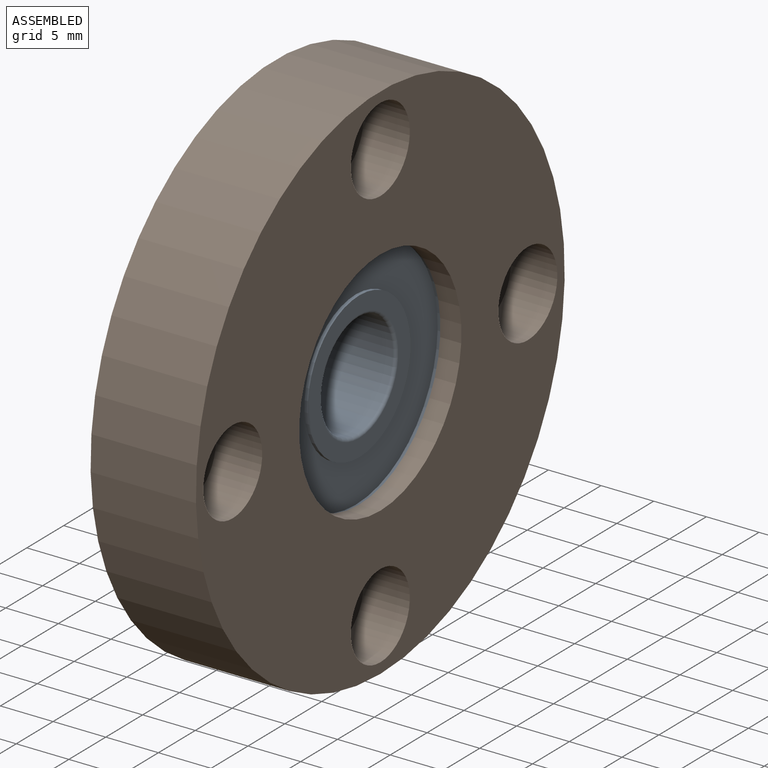
[diagram: assembled view]
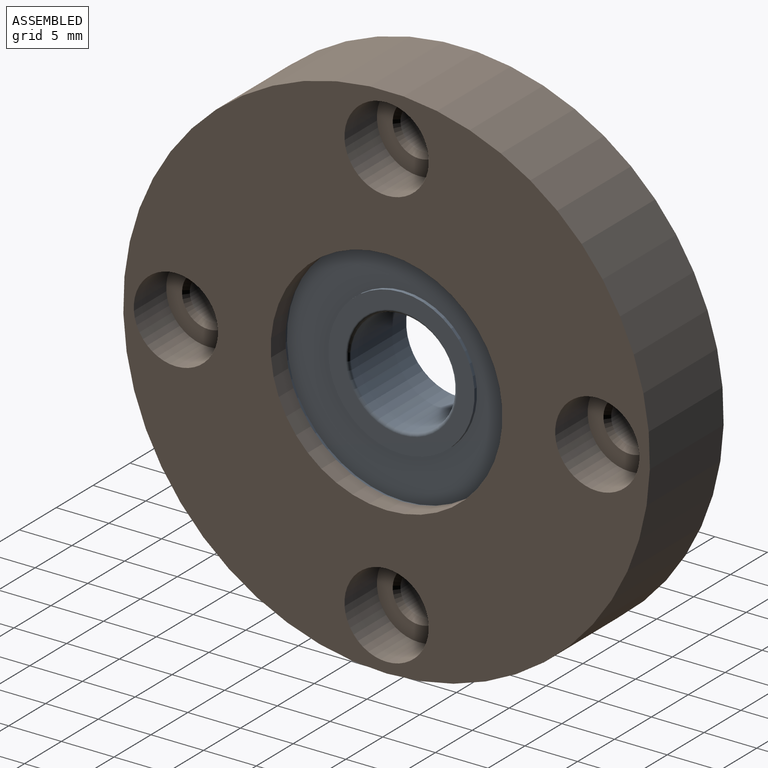
[diagram: assembled view, second angle]
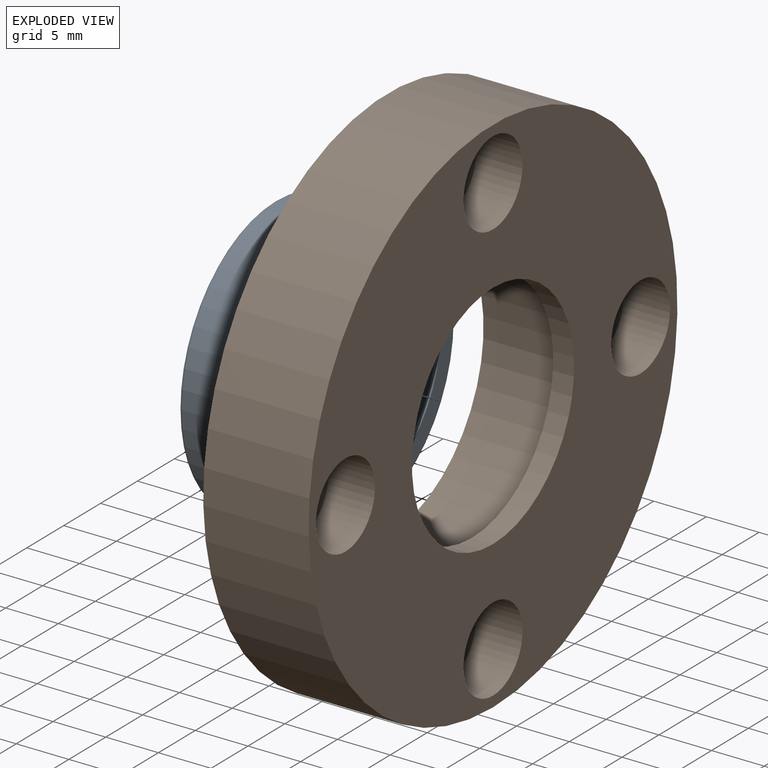
[diagram: exploded view]
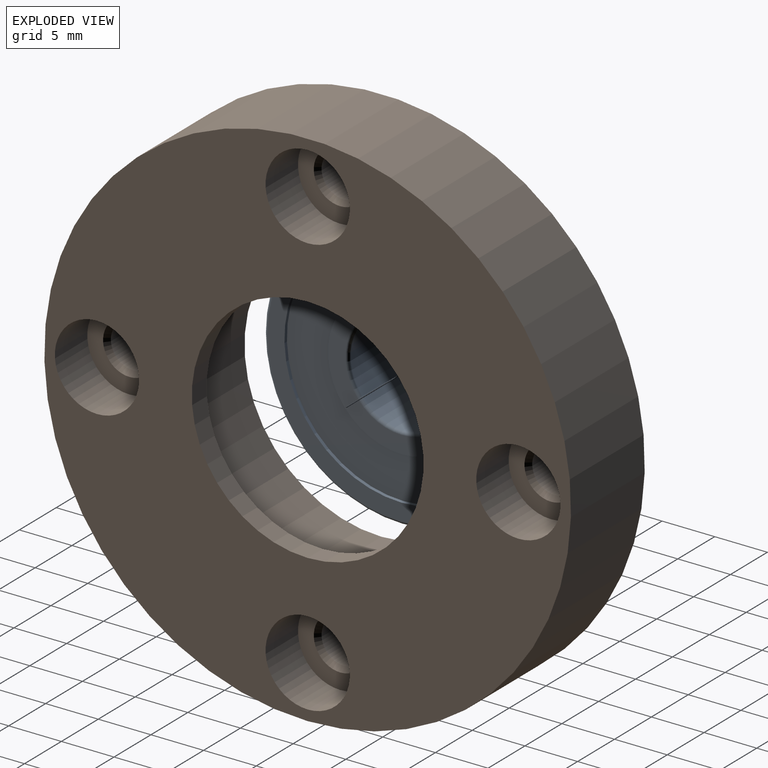
[diagram: exploded view, second angle]
ASSEMBLY  parts=2 mates=2
PART A: 16 faces, bbox 8x28.1x28.1 mm
  f0: plane 13.9x13.9mm, normal (-1,0,0), area 63.5mm2, adj f1,f15
  f1: torus R=5.3mm, axis (1,0,0), area 15.1mm2, adj f0,f2
  f2: cylinder r=5mm len=10mm, axis (-1,0,0), area 232.5mm2, adj f1,f3
  f3: torus R=5.3mm, axis (1,0,0), area 15.1mm2, adj f2,f4
  f4: plane 13.9x13.9mm, normal (1,0,0), area 63.5mm2, adj f3,f5
  f5: cylinder r=6.95mm len=13.9mm, axis (-1,0,0), area 14.5mm2, adj f4,f6
  f6: plane 22.2x22.2mm, normal (1,0,0), area 235.3mm2, adj f5,f7
  f7: cylinder r=11.1mm len=22.2mm, axis (-1,0,0), area 23.1mm2, adj f6,f8
  f8: plane 25.4x25.4mm, normal (1,0,0), area 119.6mm2, adj f7,f9
  f9: torus R=12.7mm, axis (1,0,0), area 38.2mm2, adj f8,f10
  f10: cylinder r=13mm len=26mm, axis (-1,0,0), area 604.4mm2, adj f9,f11
  f11: torus R=12.7mm, axis (1,0,0), area 38.2mm2, adj f10,f12
  f12: plane 25.4x25.4mm, normal (-1,0,0), area 119.6mm2, adj f11,f13
  f13: cylinder r=11.1mm len=22.2mm, axis (-1,0,0), area 23.1mm2, adj f12,f14
  f14: plane 22.2x22.2mm, normal (-1,0,0), area 235.3mm2, adj f13,f15
  f15: cylinder r=6.95mm len=13.9mm, axis (-1,0,0), area 14.5mm2, adj f0,f14
PART B: 26 faces, bbox 10x50x50 mm
  f0: plane 50x50mm, normal (1,0,0), area 1382.3mm2, adj f1,f5,f10,f15,f20,f25
  f1: cylinder r=25mm len=50mm, axis (-1,0,0), area 1570.8mm2, adj f0,f2
  f2: plane 50x50mm, normal (-1,0,0), area 1354mm2, adj f1,f3,f6,f11,f16,f21
  f3: cylinder r=13mm len=26mm, axis (-1,0,0), area 653.5mm2, adj f2,f4
  f4: plane 26x26mm, normal (-1,0,0), area 150.8mm2, adj f3,f5
  f5: cylinder r=11mm len=22mm, axis (-1,0,0), area 138.2mm2, adj f0,f4
  f6: cone r=2.5mm half-angle=45deg, axis (-1,0,0), area 8.8mm2, adj f2,f7
  f7: cylinder r=2.07mm len=4.73mm, axis (-1,0,0), area 61.5mm2, adj f6,f8
  f8: cone r=2.07mm half-angle=45deg, axis (1,0,0), area 8.8mm2, adj f7,f9
  f9: plane 8x8mm, normal (1,0,0), area 30.6mm2, adj f8,f10
  f10: cylinder r=4mm len=8mm, axis (-1,0,0), area 110.6mm2, adj f0,f9
  f11: cone r=2.5mm half-angle=45deg, axis (-1,0,0), area 8.8mm2, adj f2,f12
  f12: cylinder r=2.07mm len=4.73mm, axis (-1,0,0), area 61.5mm2, adj f11,f13
  f13: cone r=2.07mm half-angle=45deg, axis (1,0,0), area 8.8mm2, adj f12,f14
  f14: plane 8x8mm, normal (1,0,0), area 30.6mm2, adj f13,f15
  f15: cylinder r=4mm len=8mm, axis (-1,0,0), area 110.6mm2, adj f0,f14
  f16: cone r=2.5mm half-angle=45deg, axis (-1,0,0), area 8.8mm2, adj f2,f17
  f17: cylinder r=2.07mm len=4.73mm, axis (-1,0,0), area 61.5mm2, adj f16,f18
  f18: cone r=2.07mm half-angle=45deg, axis (1,0,0), area 8.8mm2, adj f17,f19
  f19: plane 8x8mm, normal (1,0,0), area 30.6mm2, adj f18,f20
  f20: cylinder r=4mm len=8mm, axis (-1,0,0), area 110.6mm2, adj f0,f19
  f21: cone r=2.5mm half-angle=45deg, axis (-1,0,0), area 8.8mm2, adj f2,f22
  f22: cylinder r=2.07mm len=4.73mm, axis (-1,0,0), area 61.5mm2, adj f21,f23
  f23: cone r=2.07mm half-angle=45deg, axis (1,0,0), area 8.8mm2, adj f22,f24
  f24: plane 8x8mm, normal (1,0,0), area 30.6mm2, adj f23,f25
  f25: cylinder r=4mm len=8mm, axis (-1,0,0), area 110.6mm2, adj f0,f24
PLACE A rot(axis=(0,0,1),180deg) t=(-4.85,-0.13,-2.19)mm
PLACE B t=(-7.85,-0.13,-2.19)mm
MATE planar A.f1 <-> B.f1  axis (-1,0,0) through (-12.85,-0.13,-2.19)mm
MATE cylindrical A.f1 <-> B.f1  axis (-1,0,0) through (-12.85,-0.13,-2.19)mm
